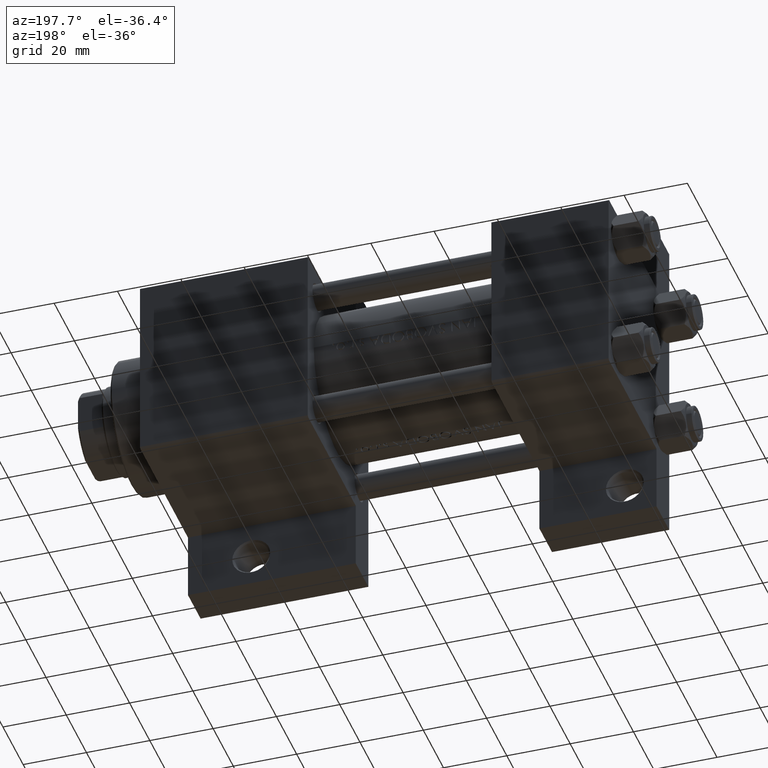
[diagram: clean part render]
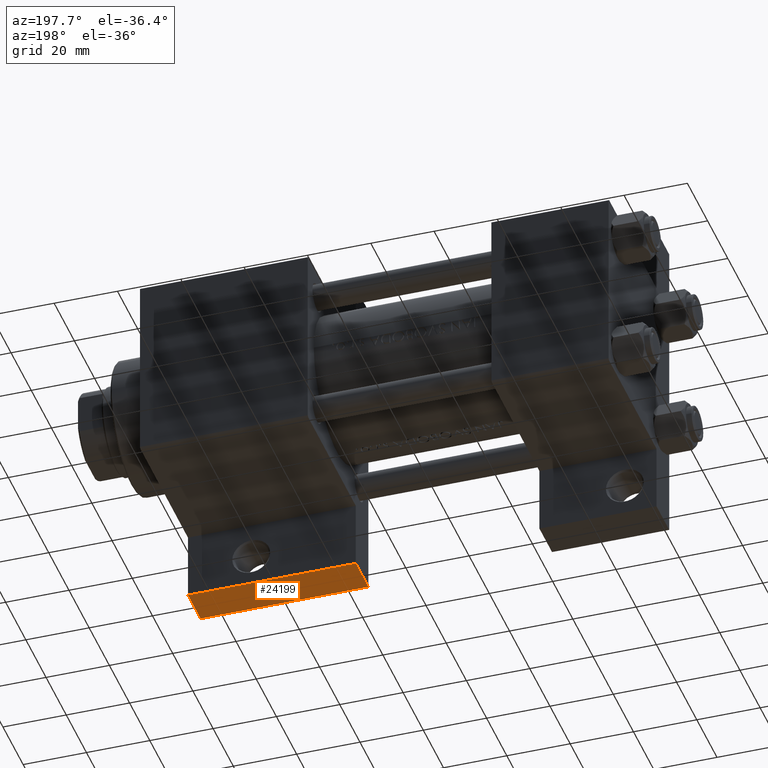
[diagram: same view with one face highlighted and labeled with its STEP entity id]
A machine part, auxiliary view. The second image highlights one B-rep face of the part: STEP entity #24199.
In plain terms, the highlighted planar face has unit normal (0, 0, -1).
Its self-contained STEP definition (entity closure, byte-faithful):
#160 = CARTESIAN_POINT ( 'NONE',  ( 95.00000000000000000, 51.50000000000000711, -17.49999999999999645 ) ) ;
#292 = CARTESIAN_POINT ( 'NONE',  ( 95.00000000000000000, 51.50000000000000711, -17.49999999999999645 ) ) ;
#3898 = LINE ( 'NONE', #33020, #22372 ) ;
#5141 = CARTESIAN_POINT ( 'NONE',  ( 95.00000000000000000, 51.50000000000000711, -29.99999999999999645 ) ) ;
#10517 = DIRECTION ( 'NONE',  ( 1.000000000000000000, -2.618450529776313247E-16, 0.000000000000000000 ) ) ;
#10750 = DIRECTION ( 'NONE',  ( 0.000000000000000000, 0.000000000000000000, -1.000000000000000000 ) ) ;
#10931 = VECTOR ( 'NONE', #10750, 1000.000000000000000 ) ;
#14743 = DIRECTION ( 'NONE',  ( 0.000000000000000000, 0.000000000000000000, -1.000000000000000000 ) ) ;
#15344 = FACE_OUTER_BOUND ( 'NONE', #24122, .T. ) ;
#15448 = AXIS2_PLACEMENT_3D ( 'NONE', #15590, #33383, #19425 ) ;
#15567 = VERTEX_POINT ( 'NONE', #292 ) ;
#15590 = CARTESIAN_POINT ( 'NONE',  ( 95.00000000000000000, 51.50000000000000711, -17.49999999999999645 ) ) ;
#16237 = LINE ( 'NONE', #5141, #19330 ) ;
#19330 = VECTOR ( 'NONE', #34499, 1000.000000000000000 ) ;
#19425 = DIRECTION ( 'NONE',  ( -1.000000000000000000, 2.618450529776313247E-16, 0.000000000000000000 ) ) ;
#22178 = CARTESIAN_POINT ( 'NONE',  ( 95.00000000000000000, 51.50000000000000711, -29.99999999999999645 ) ) ;
#22372 = VECTOR ( 'NONE', #14743, 1000.000000000000000 ) ;
#23416 = ORIENTED_EDGE ( 'NONE', *, *, #27070, .F. ) ;
#23728 = EDGE_CURVE ( 'NONE', #42282, #27020, #3898, .T. ) ;
#24122 = EDGE_LOOP ( 'NONE', ( #34114, #23416, #26964, #34658 ) ) ;
#24199 = ADVANCED_FACE ( 'NONE', ( #15344 ), #26876, .T. ) ;
#26876 = PLANE ( 'NONE',  #15448 ) ;
#26964 = ORIENTED_EDGE ( 'NONE', *, *, #42539, .T. ) ;
#27020 = VERTEX_POINT ( 'NONE', #30349 ) ;
#27070 = EDGE_CURVE ( 'NONE', #15567, #42811, #44427, .T. ) ;
#27164 = CARTESIAN_POINT ( 'NONE',  ( 148.0000000000000000, 51.49999999999999289, -17.49999999999999645 ) ) ;
#28805 = LINE ( 'NONE', #43473, #36965 ) ;
#30349 = CARTESIAN_POINT ( 'NONE',  ( 148.0000000000000000, 51.49999999999999289, -29.99999999999999645 ) ) ;
#33020 = CARTESIAN_POINT ( 'NONE',  ( 148.0000000000000000, 51.49999999999999289, -17.49999999999999645 ) ) ;
#33383 = DIRECTION ( 'NONE',  ( 2.618450529776313247E-16, 1.000000000000000000, 0.000000000000000000 ) ) ;
#34114 = ORIENTED_EDGE ( 'NONE', *, *, #39461, .F. ) ;
#34499 = DIRECTION ( 'NONE',  ( 1.000000000000000000, -2.618450529776313247E-16, 0.000000000000000000 ) ) ;
#34658 = ORIENTED_EDGE ( 'NONE', *, *, #23728, .T. ) ;
#36965 = VECTOR ( 'NONE', #10517, 1000.000000000000000 ) ;
#39461 = EDGE_CURVE ( 'NONE', #42811, #27020, #16237, .T. ) ;
#42282 = VERTEX_POINT ( 'NONE', #27164 ) ;
#42539 = EDGE_CURVE ( 'NONE', #15567, #42282, #28805, .T. ) ;
#42811 = VERTEX_POINT ( 'NONE', #22178 ) ;
#43473 = CARTESIAN_POINT ( 'NONE',  ( 95.00000000000000000, 51.50000000000000711, -17.49999999999999645 ) ) ;
#44427 = LINE ( 'NONE', #160, #10931 ) ;